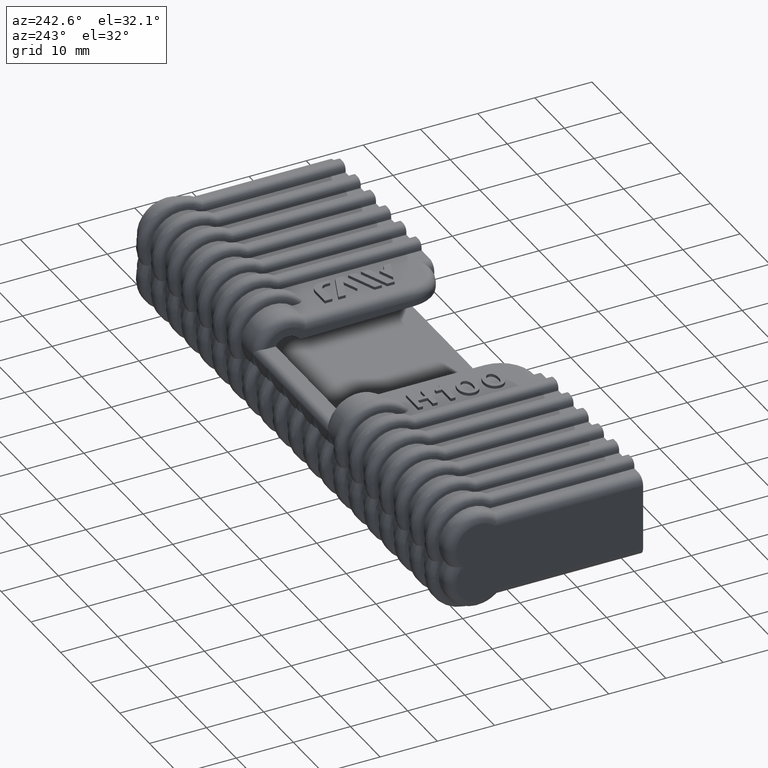
[diagram: clean part render]
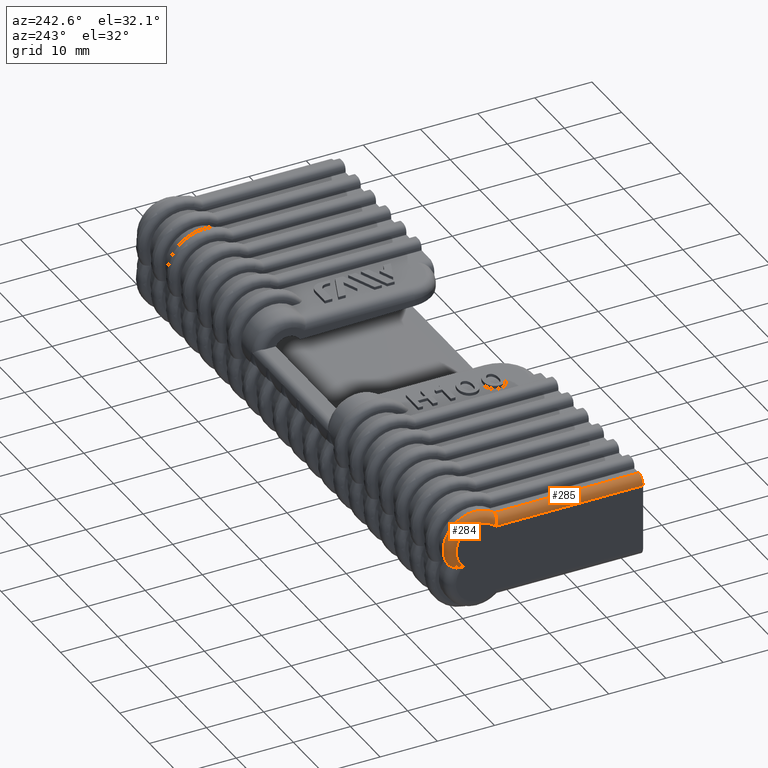
[diagram: same view with one multi-face feature highlighted, each face labeled with its STEP entity id]
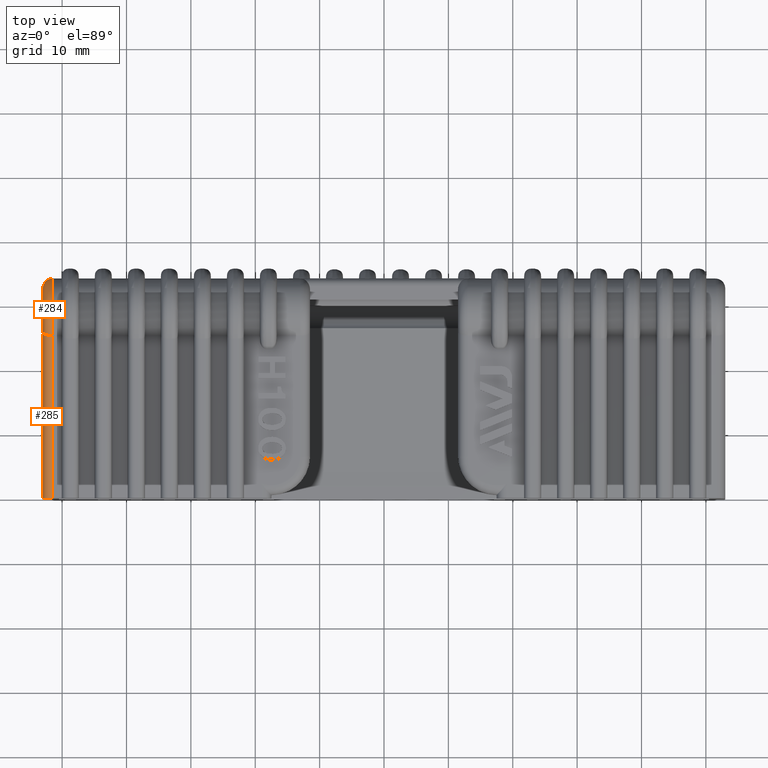
[diagram: same view with one multi-face feature highlighted, each face labeled with its STEP entity id]
A machine part, auxiliary view. The highlighted faces form ONE feature: a constant-radius fillet chain: 2 tangent blend faces with common blend radius 1.5 mm. The faces share edges in the B-rep.
A second angle (top view) of the same feature is appended — it is thin or edge-on in the first view.
Their STEP definitions:
[1] entity #284 (Torus):
#284 = ADVANCED_FACE( '', ( #1044 ), #1045, .T. );
#1044 = FACE_OUTER_BOUND( '', #2149, .T. );
#1045 = TOROIDAL_SURFACE( '', #2150, 4.00000000000001, 1.50000000000000 );
#2149 = EDGE_LOOP( '', ( #4742, #4743, #4744, #4745 ) );
#2150 = AXIS2_PLACEMENT_3D( '', #4746, #4747, #4748 );
#4742 = ORIENTED_EDGE( '', *, *, #8397, .T. );
#4743 = ORIENTED_EDGE( '', *, *, #8398, .F. );
#4744 = ORIENTED_EDGE( '', *, *, #8399, .F. );
#4745 = ORIENTED_EDGE( '', *, *, #7938, .F. );
#4746 = CARTESIAN_POINT( '', ( -51.5000000000000, 28.7272077938642, 2.97720779386419 ) );
#4747 = DIRECTION( '', ( -1.00000000000000, -3.31166777813623E-032, -1.80284751248131E-016 ) );
#4748 = DIRECTION( '', ( -1.80284751248131E-016, 1.83690953073357E-016, 1.00000000000000 ) );
#7938 = EDGE_CURVE( '', #9359, #9776, #9777, .F. );
#8397 = EDGE_CURVE( '', #9359, #10556, #10557, .T. );
#8398 = EDGE_CURVE( '', #10558, #10556, #10559, .T. );
#8399 = EDGE_CURVE( '', #9776, #10558, #10560, .T. );
#9359 = VERTEX_POINT( '', #12391 );
#9776 = VERTEX_POINT( '', #13360 );
#9777 = CIRCLE( '', #13361, 5.50000000000001 );
#10556 = VERTEX_POINT( '', #15019 );
#10557 = B_SPLINE_CURVE_WITH_KNOTS( '', 3, ( #15020, #15021, #15022, #15023, #15024, #15025, #15026, #15027, #15028, #15029, #15030, #15031, #15032, #15033 ), .UNSPECIFIED., .F., .F., ( 4, 2, 2, 2, 2, 2, 4 ), ( 0.000000000000000, 0.000341642013609926, 0.000683284027219852, 0.00102492604082978, 0.00136656805443970, 0.00204985208165954, 0.00273313610887938 ), .UNSPECIFIED. );
#10558 = VERTEX_POINT( '', #15034 );
#10559 = CIRCLE( '', #15035, 4.00000000000001 );
#10560 = B_SPLINE_CURVE_WITH_KNOTS( '', 3, ( #15036, #15037, #15038, #15039, #15040, #15041, #15042, #15043, #15044, #15045, #15046, #15047 ), .UNSPECIFIED., .F., .F., ( 4, 2, 2, 2, 2, 4 ), ( 0.000000000000000, 0.000303886970143307, 0.000607773940286614, 0.00121554788057321, 0.00182332182085981, 0.00243109576114640 ), .UNSPECIFIED. );
#12391 = CARTESIAN_POINT( '', ( -51.5000000000000, 33.3517330400007, 0.000000000000000 ) );
#13360 = CARTESIAN_POINT( '', ( -51.5000000000000, 25.2640810616777, 7.25000000000000 ) );
#13361 = AXIS2_PLACEMENT_3D( '', #18042, #18043, #18044 );
#15019 = CARTESIAN_POINT( '', ( -53.0000000000000, 31.3985808026659, -2.08166817117217E-014 ) );
#15020 = CARTESIAN_POINT( '', ( -51.5000000000000, 33.3517330400007, 0.000000000000000 ) );
#15021 = CARTESIAN_POINT( '', ( -51.6156339305897, 33.3517330400008, -9.84514127032812E-016 ) );
#15022 = CARTESIAN_POINT( '', ( -51.7285079238963, 33.3360647722403, -1.93249292719134E-014 ) );
#15023 = CARTESIAN_POINT( '', ( -51.9490333879557, 33.2750797797554, -2.12442542537283E-014 ) );
#15024 = CARTESIAN_POINT( '', ( -52.0560404327721, 33.2293730150485, -2.22277389955572E-014 ) );
#15025 = CARTESIAN_POINT( '', ( -52.2530646638321, 33.1143647108212, -2.43021763561869E-014 ) );
#15026 = CARTESIAN_POINT( '', ( -52.3455678401168, 33.0436192329277, -2.55302795865038E-014 ) );
#15027 = CARTESIAN_POINT( '', ( -52.5103266565275, 32.8850687075524, -2.80027768216006E-014 ) );
#15028 = CARTESIAN_POINT( '', ( -52.5836704295983, 32.7966807134968, -2.92881160740356E-014 ) );
#15029 = CARTESIAN_POINT( '', ( -52.7764689974269, 32.5102663603900, -3.42405579617905E-014 ) );
#15030 = CARTESIAN_POINT( '', ( -52.8654258454190, 32.2955678320157, -3.66687264708998E-014 ) );
#15031 = CARTESIAN_POINT( '', ( -52.9768695079818, 31.8539405879997, -5.63522308356221E-014 ) );
#15032 = CARTESIAN_POINT( '', ( -53.0000000000000, 31.6263422974787, -7.71220315352582E-011 ) );
#15033 = CARTESIAN_POINT( '', ( -53.0000000000000, 31.3985808026659, -2.08166817116190E-014 ) );
#15034 = CARTESIAN_POINT( '', ( -53.0000000000000, 25.8442191741169, 5.75000000000000 ) );
#15035 = AXIS2_PLACEMENT_3D( '', #18609, #18610, #18611 );
#15036 = CARTESIAN_POINT( '', ( -51.5000000000000, 25.2640810616777, 7.25000000000000 ) );
#15037 = CARTESIAN_POINT( '', ( -51.6027880109328, 25.2640810616777, 7.25000000000000 ) );
#15038 = CARTESIAN_POINT( '', ( -51.7036656371296, 25.2677797555849, 7.23954657130779 ) );
#15039 = CARTESIAN_POINT( '', ( -51.9017774795141, 25.2822914302486, 7.19872479677732 ) );
#15040 = CARTESIAN_POINT( '', ( -52.0000356673234, 25.2933112635684, 7.16777880100602 ) );
#15041 = CARTESIAN_POINT( '', ( -52.2774576301591, 25.3361188611296, 7.04849498343942 ) );
#15042 = CARTESIAN_POINT( '', ( -52.4447964081693, 25.3784689717184, 6.93140876151724 ) );
#15043 = CARTESIAN_POINT( '', ( -52.7164864766907, 25.4835448986879, 6.64918160941386 ) );
#15044 = CARTESIAN_POINT( '', ( -52.8230571066056, 25.5470648423216, 6.48206588604289 ) );
#15045 = CARTESIAN_POINT( '', ( -52.9641920520194, 25.6869489186435, 6.12754761772620 ) );
#15046 = CARTESIAN_POINT( '', ( -53.0000000000000, 25.7649127045159, 5.93642423758837 ) );
#15047 = CARTESIAN_POINT( '', ( -53.0000000000000, 25.8442191741169, 5.75000000000000 ) );
#18042 = CARTESIAN_POINT( '', ( -51.5000000000000, 28.7272077938642, 2.97720779386419 ) );
#18043 = DIRECTION( '', ( -1.00000000000000, -3.31166777813623E-032, -1.80284751248131E-016 ) );
#18044 = DIRECTION( '', ( -1.80284751248131E-016, 1.83690953073357E-016, 1.00000000000000 ) );
#18609 = CARTESIAN_POINT( '', ( -53.0000000000000, 28.7272077938642, 2.97720779386419 ) );
#18610 = DIRECTION( '', ( -1.00000000000000, -3.31166777813623E-032, -1.80284751248131E-016 ) );
#18611 = DIRECTION( '', ( -1.80284751248131E-016, 1.83690953073357E-016, 1.00000000000000 ) );
[2] entity #285 (Cylinder):
#285 = ADVANCED_FACE( '', ( #1046 ), #1047, .T. );
#1046 = FACE_OUTER_BOUND( '', #2151, .T. );
#1047 = CYLINDRICAL_SURFACE( '', #2152, 1.50000000000000 );
#2151 = EDGE_LOOP( '', ( #4749, #4750, #4751, #4752 ) );
#2152 = AXIS2_PLACEMENT_3D( '', #4753, #4754, #4755 );
#4749 = ORIENTED_EDGE( '', *, *, #8306, .F. );
#4750 = ORIENTED_EDGE( '', *, *, #8400, .F. );
#4751 = ORIENTED_EDGE( '', *, *, #8399, .T. );
#4752 = ORIENTED_EDGE( '', *, *, #8401, .F. );
#4753 = CARTESIAN_POINT( '', ( -51.5000000000000, -3.46944695195361E-015, 5.75000000000000 ) );
#4754 = DIRECTION( '', ( 0.000000000000000, -1.00000000000000, 1.83690953073357E-016 ) );
#4755 = DIRECTION( '', ( -1.00000000000000, -2.24949108273321E-032, -1.22460635382238E-016 ) );
#8306 = EDGE_CURVE( '', #10411, #10413, #10414, .T. );
#8399 = EDGE_CURVE( '', #9776, #10558, #10560, .T. );
#8400 = EDGE_CURVE( '', #9776, #10411, #10561, .F. );
#8401 = EDGE_CURVE( '', #10413, #10558, #10562, .T. );
#9776 = VERTEX_POINT( '', #13360 );
#10411 = VERTEX_POINT( '', #14782 );
#10413 = VERTEX_POINT( '', #14785 );
#10414 = CIRCLE( '', #14786, 1.50000000000000 );
#10558 = VERTEX_POINT( '', #15034 );
#10560 = B_SPLINE_CURVE_WITH_KNOTS( '', 3, ( #15036, #15037, #15038, #15039, #15040, #15041, #15042, #15043, #15044, #15045, #15046, #15047 ), .UNSPECIFIED., .F., .F., ( 4, 2, 2, 2, 2, 4 ), ( 0.000000000000000, 0.000303886970143307, 0.000607773940286614, 0.00121554788057321, 0.00182332182085981, 0.00243109576114640 ), .UNSPECIFIED. );
#10561 = LINE( '', #15048, #15049 );
#10562 = LINE( '', #15050, #15051 );
#13360 = CARTESIAN_POINT( '', ( -51.5000000000000, 25.2640810616777, 7.25000000000000 ) );
#14782 = CARTESIAN_POINT( '', ( -51.5000000000000, -3.46944695195361E-015, 7.25000000000000 ) );
#14785 = CARTESIAN_POINT( '', ( -53.0000000000000, -3.46944695195361E-015, 5.75000000000000 ) );
#14786 = AXIS2_PLACEMENT_3D( '', #18457, #18458, #18459 );
#15034 = CARTESIAN_POINT( '', ( -53.0000000000000, 25.8442191741169, 5.75000000000000 ) );
#15036 = CARTESIAN_POINT( '', ( -51.5000000000000, 25.2640810616777, 7.25000000000000 ) );
#15037 = CARTESIAN_POINT( '', ( -51.6027880109328, 25.2640810616777, 7.25000000000000 ) );
#15038 = CARTESIAN_POINT( '', ( -51.7036656371296, 25.2677797555849, 7.23954657130779 ) );
#15039 = CARTESIAN_POINT( '', ( -51.9017774795141, 25.2822914302486, 7.19872479677732 ) );
#15040 = CARTESIAN_POINT( '', ( -52.0000356673234, 25.2933112635684, 7.16777880100602 ) );
#15041 = CARTESIAN_POINT( '', ( -52.2774576301591, 25.3361188611296, 7.04849498343942 ) );
#15042 = CARTESIAN_POINT( '', ( -52.4447964081693, 25.3784689717184, 6.93140876151724 ) );
#15043 = CARTESIAN_POINT( '', ( -52.7164864766907, 25.4835448986879, 6.64918160941386 ) );
#15044 = CARTESIAN_POINT( '', ( -52.8230571066056, 25.5470648423216, 6.48206588604289 ) );
#15045 = CARTESIAN_POINT( '', ( -52.9641920520194, 25.6869489186435, 6.12754761772620 ) );
#15046 = CARTESIAN_POINT( '', ( -53.0000000000000, 25.7649127045159, 5.93642423758837 ) );
#15047 = CARTESIAN_POINT( '', ( -53.0000000000000, 25.8442191741169, 5.75000000000000 ) );
#15048 = CARTESIAN_POINT( '', ( -51.5000000000000, -3.46944695195361E-015, 7.25000000000000 ) );
#15049 = VECTOR( '', #18612, 1000.00000000000 );
#15050 = CARTESIAN_POINT( '', ( -53.0000000000000, -3.46944695195361E-015, 5.75000000000000 ) );
#15051 = VECTOR( '', #18613, 1000.00000000000 );
#18457 = CARTESIAN_POINT( '', ( -51.5000000000000, -3.46944695195361E-015, 5.75000000000000 ) );
#18458 = DIRECTION( '', ( 0.000000000000000, -1.00000000000000, 1.83690953073357E-016 ) );
#18459 = DIRECTION( '', ( 1.00000000000000, 2.24949108273321E-032, 1.22460635382238E-016 ) );
#18612 = DIRECTION( '', ( 0.000000000000000, 1.00000000000000, -1.83690953073357E-016 ) );
#18613 = DIRECTION( '', ( 0.000000000000000, 1.00000000000000, -1.83690953073357E-016 ) );